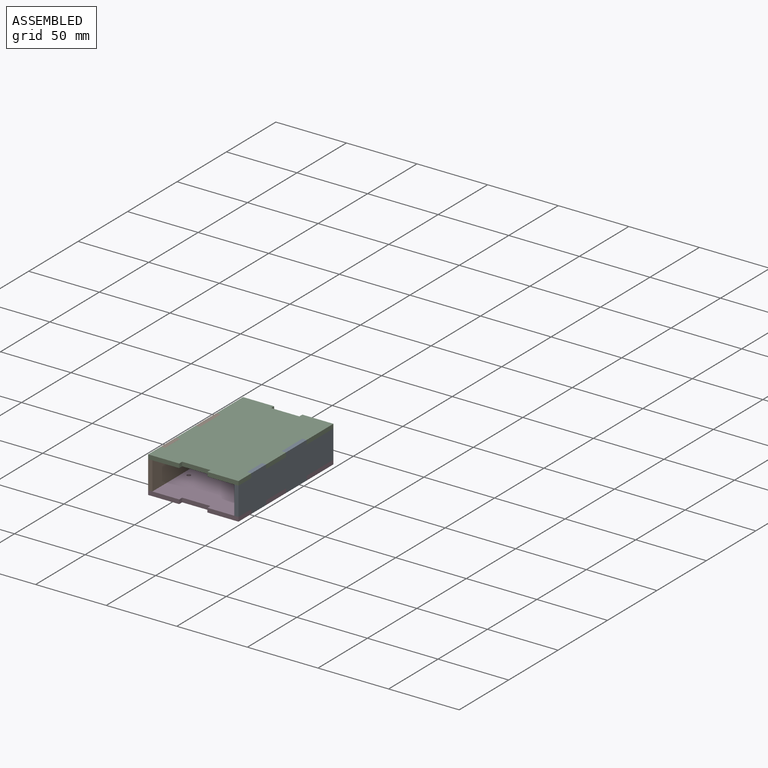
[diagram: assembled view]
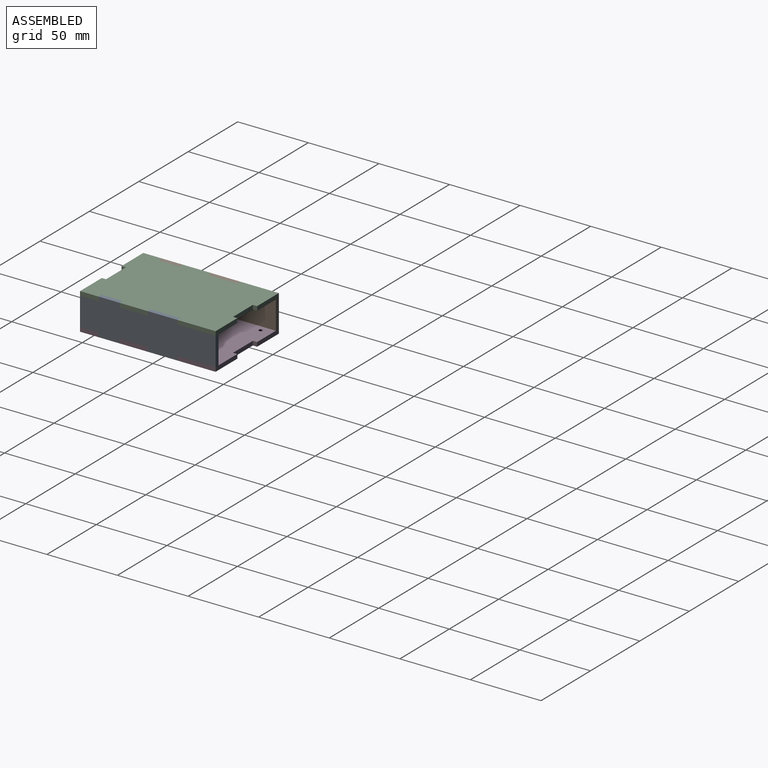
[diagram: assembled view, second angle]
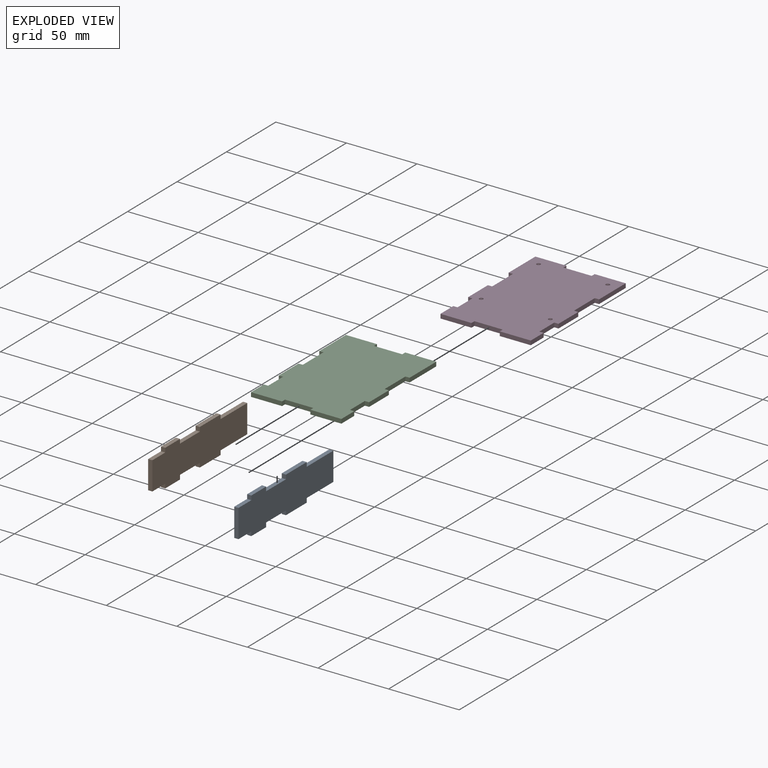
[diagram: exploded view]
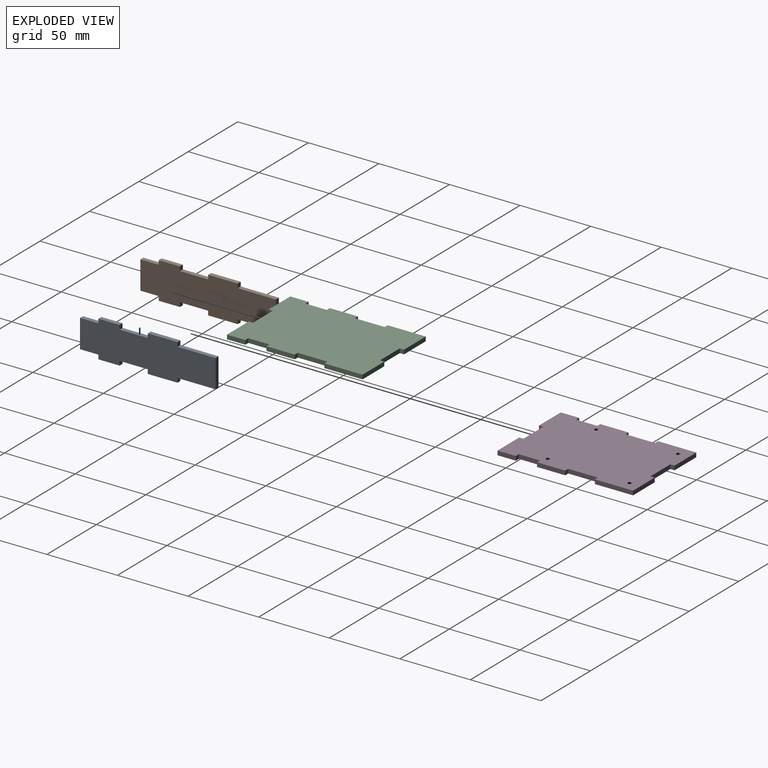
[diagram: exploded view, second angle]
ASSEMBLY  parts=4 mates=3
PART A: 22 faces, bbox 3x96x26 mm
  f0: plane 27x3mm, normal (0,0,1), area 81mm2, adj f1,f19,f20,f21
  f1: plane 3x3mm, normal (0,1,0), area 9mm2, adj f0,f2,f20,f21
  f2: plane 21x3mm, normal (0,0,1), area 63mm2, adj f1,f3,f20,f21
  f3: plane 3x3mm, normal (0,-1,0), area 9mm2, adj f2,f4,f20,f21
  f4: plane 20x3mm, normal (0,0,1), area 60mm2, adj f3,f5,f20,f21
  f5: plane 3x3mm, normal (0,1,0), area 9mm2, adj f4,f6,f20,f21
  f6: plane 15x3mm, normal (0,0,1), area 45mm2, adj f5,f7,f20,f21
  f7: plane 3x3mm, normal (0,-1,0), area 9mm2, adj f6,f8,f20,f21
  f8: plane 13x3mm, normal (0,0,1), area 39mm2, adj f7,f9,f20,f21
  f9: plane 20x3mm, normal (0,-1,0), area 60mm2, adj f8,f10,f20,f21
  f10: plane 13x3mm, normal (0,0,-1), area 39mm2, adj f9,f11,f20,f21
  f11: plane 3x3mm, normal (0,-1,0), area 9mm2, adj f10,f12,f20,f21
  f12: plane 15x3mm, normal (0,0,-1), area 45mm2, adj f11,f13,f20,f21
  f13: plane 3x3mm, normal (0,1,0), area 9mm2, adj f12,f14,f20,f21
  f14: plane 20x3mm, normal (0,0,-1), area 60mm2, adj f13,f15,f20,f21
  f15: plane 3x3mm, normal (0,-1,0), area 9mm2, adj f14,f16,f20,f21
  f16: plane 21x3mm, normal (0,0,-1), area 63mm2, adj f15,f17,f20,f21
  f17: plane 3x3mm, normal (0,1,0), area 9mm2, adj f16,f18,f20,f21
  f18: plane 27x3mm, normal (0,0,-1), area 81mm2, adj f17,f19,f20,f21
  f19: plane 20x3mm, normal (0,1,0), area 60mm2, adj f0,f18,f20,f21
  f20: plane 96x26mm, normal (1,0,0), area 2136mm2, adj f0,f1,f2,f3,f4,f5,f6,f7
  f21: plane 96x26mm, normal (-1,0,0), area 2136mm2, adj f0,f1,f2,f3,f4,f5,f6,f7
PART B: same geometry as A
PART C: 30 faces, bbox 64x96x3 mm
  f0: plane 27x3mm, normal (-1,0,0), area 81mm2, adj f1,f27,f28,f29
  f1: plane 3x3mm, normal (0,-1,0), area 9mm2, adj f0,f2,f28,f29
  f2: plane 21x3mm, normal (-1,0,0), area 63mm2, adj f1,f3,f28,f29
  f3: plane 3x3mm, normal (0,1,0), area 9mm2, adj f2,f4,f28,f29
  f4: plane 20x3mm, normal (-1,0,0), area 60mm2, adj f3,f5,f28,f29
  f5: plane 3.04x3mm, normal (0,-1,0), area 9.1mm2, adj f4,f6,f28,f29
  f6: plane 15x3mm, normal (-1,0,0), area 45mm2, adj f5,f7,f28,f29
  f7: plane 3x2.99mm, normal (0,1,0), area 9mm2, adj f6,f8,f28,f29
  f8: plane 13x3mm, normal (-1,0,0), area 39mm2, adj f7,f9,f28,f29
  f9: plane 22x3mm, normal (0,-1,0), area 66mm2, adj f8,f10,f28,f29
  f10: plane 3x3mm, normal (1,0,0), area 9mm2, adj f9,f11,f28,f29
  f11: plane 20x3mm, normal (0,-1,0), area 60mm2, adj f10,f12,f28,f29
  f12: plane 3x3mm, normal (-1,0,0), area 9mm2, adj f11,f13,f28,f29
  f13: plane 22x3mm, normal (0,-1,0), area 66mm2, adj f12,f14,f28,f29
  f14: plane 13x3mm, normal (1,0,0), area 39mm2, adj f13,f15,f28,f29
  f15: plane 3x3mm, normal (0,1,0), area 9mm2, adj f14,f16,f28,f29
  f16: plane 15x3mm, normal (1,0,0), area 45mm2, adj f15,f17,f28,f29
  f17: plane 3x3mm, normal (0,-1,0), area 9mm2, adj f16,f18,f28,f29
  f18: plane 20x3mm, normal (1,0,0), area 60mm2, adj f17,f19,f28,f29
  f19: plane 3x3mm, normal (0,1,0), area 9mm2, adj f18,f20,f28,f29
  f20: plane 21x3mm, normal (1,0,0), area 63mm2, adj f19,f21,f28,f29
  f21: plane 3x3mm, normal (0,-1,0), area 9mm2, adj f20,f22,f28,f29
  f22: plane 27x3mm, normal (1,0,0), area 81mm2, adj f21,f23,f28,f29
  f23: plane 22x3mm, normal (0,1,0), area 66mm2, adj f22,f24,f28,f29
  f24: plane 3x3mm, normal (-1,0,0), area 9mm2, adj f23,f25,f28,f29
  f25: plane 20x3mm, normal (0,1,0), area 60mm2, adj f24,f26,f28,f29
  f26: plane 3x3mm, normal (1,0,0), area 9mm2, adj f25,f27,f28,f29
  f27: plane 22x3mm, normal (0,1,0), area 66mm2, adj f0,f26,f28,f29
  f28: plane 96x64mm, normal (0,0,1), area 5807.8mm2, adj f0,f1,f2,f3,f4,f5,f6,f7
  f29: plane 96x64mm, normal (0,0,-1), area 5807.8mm2, adj f0,f1,f2,f3,f4,f5,f6,f7
PART D: 34 faces, bbox 64x96x3 mm
  f0: plane 27x3mm, normal (-1,0,0), area 81mm2, adj f1,f30,f32,f33
  f1: plane 3x3mm, normal (0,-1,0), area 9mm2, adj f0,f2,f32,f33
  f2: plane 21x3mm, normal (-1,0,0), area 63mm2, adj f1,f3,f32,f33
  f3: plane 3x3mm, normal (0,1,0), area 9mm2, adj f2,f4,f32,f33
  f4: plane 20x3mm, normal (-1,0,0), area 60mm2, adj f3,f5,f32,f33
  f5: plane 3.04x3mm, normal (0,-1,0), area 9.1mm2, adj f4,f6,f32,f33
  f6: plane 15x3mm, normal (-1,0,0), area 45mm2, adj f5,f7,f32,f33
  f7: plane 3x2.99mm, normal (0,1,0), area 9mm2, adj f6,f8,f32,f33
  f8: plane 13x3mm, normal (-1,0,0), area 39mm2, adj f7,f9,f32,f33
  f9: plane 22x3mm, normal (0,-1,0), area 66mm2, adj f8,f10,f32,f33
  f10: plane 3x3mm, normal (1,0,0), area 9mm2, adj f9,f11,f32,f33
  f11: plane 20x3mm, normal (0,-1,0), area 60mm2, adj f10,f12,f32,f33
  f12: plane 3x3mm, normal (-1,0,0), area 9mm2, adj f11,f13,f32,f33
  f13: plane 22x3mm, normal (0,-1,0), area 66mm2, adj f12,f14,f32,f33
  f14: plane 13x3mm, normal (1,0,0), area 39mm2, adj f13,f15,f32,f33
  f15: plane 3x3mm, normal (0,1,0), area 9mm2, adj f14,f16,f32,f33
  f16: plane 15x3mm, normal (1,0,0), area 45mm2, adj f15,f17,f32,f33
  f17: plane 3x3mm, normal (0,-1,0), area 9mm2, adj f16,f18,f32,f33
  f18: plane 20x3mm, normal (1,0,0), area 60mm2, adj f17,f19,f32,f33
  f19: plane 3x3mm, normal (0,1,0), area 9mm2, adj f18,f20,f32,f33
  f20: plane 21x3mm, normal (1,0,0), area 63mm2, adj f19,f21,f32,f33
  f21: plane 3x3mm, normal (0,-1,0), area 9mm2, adj f20,f22,f32,f33
  f22: plane 27x3mm, normal (1,0,0), area 81mm2, adj f21,f23,f32,f33
  f23: plane 22x3mm, normal (0,1,0), area 66mm2, adj f22,f24,f32,f33
  f24: plane 3x3mm, normal (-1,0,0), area 9mm2, adj f23,f25,f32,f33
  f25: plane 20x3mm, normal (0,1,0), area 60mm2, adj f24,f26,f32,f33
  f26: plane 3x3mm, normal (1,0,0), area 9mm2, adj f25,f30,f32,f33
  f27: cylinder r=1.38mm len=3mm, axis (0,0,-1), area 25.9mm2, adj f32,f33
  f28: cylinder r=1.38mm len=3mm, axis (0,0,-1), area 25.9mm2, adj f32,f33
  f29: cylinder r=1.38mm len=3mm, axis (0,0,-1), area 25.9mm2, adj f32,f33
  f30: plane 22x3mm, normal (0,1,0), area 66mm2, adj f0,f26,f32,f33
  f31: cylinder r=1.38mm len=3mm, axis (0,0,-1), area 25.9mm2, adj f32,f33
  f32: plane 96x64mm, normal (0,0,1), area 5784mm2, adj f0,f1,f2,f3,f4,f5,f6,f7
  f33: plane 96x64mm, normal (0,0,-1), area 5784mm2, adj f0,f1,f2,f3,f4,f5,f6,f7
PLACE A t=(13.62,8.08,12.32)mm
PLACE B t=(-47.38,8.08,12.32)mm
PLACE C t=(-16.44,9.72,35.32)mm
PLACE D t=(-15.38,8.08,12.32)mm
MATE planar A.f9 <-> D.f13  axis (0,-1,0) through (16.62,-39.92,15.32)mm
MATE planar B.f19 <-> D.f30  axis (0,-1,0) through (-47.38,56.08,15.32)mm
MATE planar C.f27 <-> B.f19  axis (0,1,0) through (-47.38,56.08,35.32)mm
